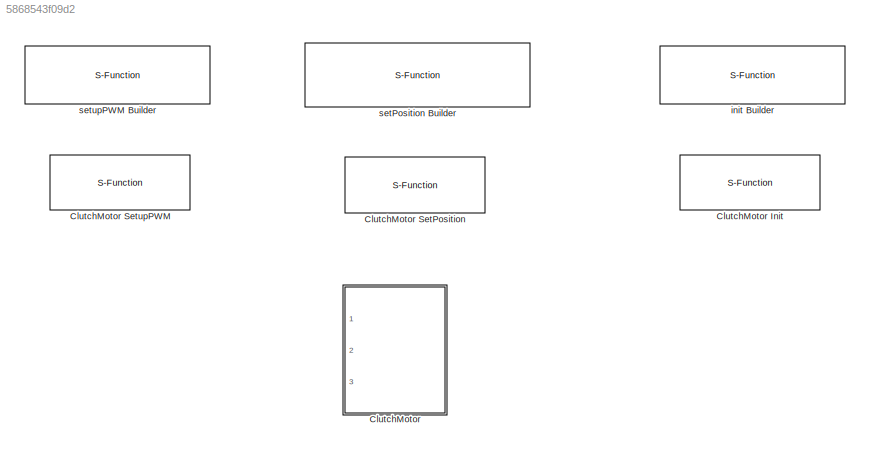
MODEL slx_5868543f09d2
KIND library
CONFIG AbsTol = auto
CONFIG EnableMultiTasking = off
CONFIG FixedStep = auto
CONFIG MaxStep = auto
CONFIG MinStep = auto
CONFIG RelTol = 1e-3
CONFIG SampleTimeConstraint = Unconstrained
CONFIG Solver = VariableStepAuto
CONFIG SolverName = VariableStepAuto
CONFIG StartTime = 0.0
CONFIG StopTime = 10.0
BLOCK [S-Function]  ClutchMotor SetupPWM
  EnableBusSupport = off
  FunctionName = ClutchMotor_setupPWM
  Ports = []
  SFcnIsStateOwnerBlock = off
  SFunctionDeploymentMode = off
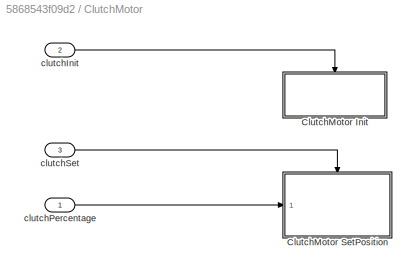
BLOCK [SubSystem] ClutchMotor
  Permissions = NoReadOrWrite
  Ports = [3]
  RequestExecContextInheritance = off
BLOCK [S-Function] ClutchMotor Init
  EnableBusSupport = off
  FunctionName = ClutchMotor_init
  Ports = []
  SFcnIsStateOwnerBlock = off
  SFunctionDeploymentMode = off
BLOCK [S-Function] ClutchMotor SetPosition
  EnableBusSupport = off
  FunctionName = ClutchMotor_setPosition
  Ports = [1]
  SFcnIsStateOwnerBlock = off
  SFunctionDeploymentMode = off
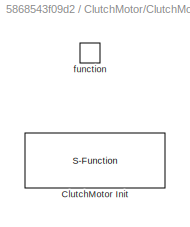
BLOCK [SubSystem] ClutchMotor/ClutchMotor Init 
  Ports = [0, 0, 0, 1]
  RequestExecContextInheritance = off
  TreatAsAtomicUnit = on
BLOCK [S-Function] ClutchMotor/ClutchMotor Init /ClutchMotor Init
  EnableBusSupport = off
  FunctionName = ClutchMotor_init
  Ports = []
  SFcnIsStateOwnerBlock = off
  SFunctionDeploymentMode = off
BLOCK [TriggerPort] ClutchMotor/ClutchMotor Init /function
  Ports = []
  StatesWhenEnabling = held
  TriggerType = function-call
  VariantControl = Variant
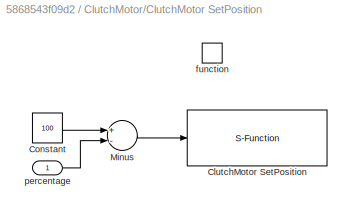
BLOCK [SubSystem] ClutchMotor/ClutchMotor SetPosition 
  Ports = [1, 0, 0, 1]
  RequestExecContextInheritance = off
  TreatAsAtomicUnit = on
BLOCK [S-Function] ClutchMotor/ClutchMotor SetPosition /ClutchMotor SetPosition
  EnableBusSupport = off
  FunctionName = ClutchMotor_setPosition
  Ports = [1]
  SFcnIsStateOwnerBlock = off
  SFunctionDeploymentMode = off
BLOCK [Constant] ClutchMotor/ClutchMotor SetPosition /Constant
  OutDataTypeStr = uint8
  Value = 100
BLOCK [Sum] ClutchMotor/ClutchMotor SetPosition /Minus
  InputSameDT = off
  Inputs = +-
  OutDataTypeStr = Inherit: Inherit via internal rule
  Ports = [2, 1]
  SaturateOnIntegerOverflow = off
BLOCK [TriggerPort] ClutchMotor/ClutchMotor SetPosition /function
  Ports = []
  StatesWhenEnabling = held
  TriggerType = function-call
  VariantControl = Variant
BLOCK [Inport] ClutchMotor/ClutchMotor SetPosition /percentage
  IconDisplay = Port number
BLOCK [Inport] ClutchMotor/clutchInit
  IconDisplay = Port number
  Port = 2
BLOCK [Inport] ClutchMotor/clutchPercentage
  IconDisplay = Port number
BLOCK [Inport] ClutchMotor/clutchSet
  IconDisplay = Port number
  Port = 3
BLOCK [S-Function] init Builder
  CopyFcn = set_param(gcbh,'LinkStatus','none')
  EnableBusSupport = off
  FunctionName = ClutchMotor_init
  InitFcn = try, set_param(gcb,'FunctionName','ClutchMotor_init'), end
  OpenFcn = sfunctionwizard(gcbh)
  Ports = []
  PreSaveFcn = try, set_param(gcb,'FunctionName','ClutchMotor_init'), end
  SFcnIsStateOwnerBlock = off
  SFunctionDeploymentMode = off
  SFunctionModules = ClutchMotor_init_wrapper
BLOCK [S-Function] setPosition Builder
  CopyFcn = set_param(gcbh,'LinkStatus','none')
  EnableBusSupport = off
  FunctionName = ClutchMotor_setPosition
  InitFcn = try, set_param(gcb,'FunctionName','GearMotor_brake'), end
  OpenFcn = sfunctionwizard(gcbh)
  Ports = [1]
  PreSaveFcn = try, set_param(gcb,'FunctionName','ClutchMotor_setPosition'), end
  SFcnIsStateOwnerBlock = off
  SFunctionDeploymentMode = off
  SFunctionModules = ClutchMotor_setPosition_wrapper
BLOCK [S-Function] setupPWM Builder
  CopyFcn = set_param(gcbh,'LinkStatus','none')
  EnableBusSupport = off
  FunctionName = ClutchMotor_setupPWM
  InitFcn = try, set_param(gcb,'FunctionName','ClutchMotor_setupPWM'), end
  OpenFcn = sfunctionwizard(gcbh)
  Ports = []
  PreSaveFcn = try, set_param(gcb,'FunctionName','ClutchMotor_setupPWM'), end
  SFcnIsStateOwnerBlock = off
  SFunctionDeploymentMode = off
  SFunctionModules = ClutchMotor_setupPWM_wrapper ClutchMotor_setPosition_wrapper
LINE ClutchMotor/ClutchMotor SetPosition /Constant:1 -> ClutchMotor/ClutchMotor SetPosition /Minus:1
LINE ClutchMotor/ClutchMotor SetPosition /Minus:1 -> ClutchMotor/ClutchMotor SetPosition /ClutchMotor SetPosition:1
LINE ClutchMotor/ClutchMotor SetPosition /percentage:1 -> ClutchMotor/ClutchMotor SetPosition /Minus:2
LINE ClutchMotor/clutchInit:1 -> ClutchMotor/ClutchMotor Init :trigger
LINE ClutchMotor/clutchPercentage:1 -> ClutchMotor/ClutchMotor SetPosition :1
LINE ClutchMotor/clutchSet:1 -> ClutchMotor/ClutchMotor SetPosition :trigger
